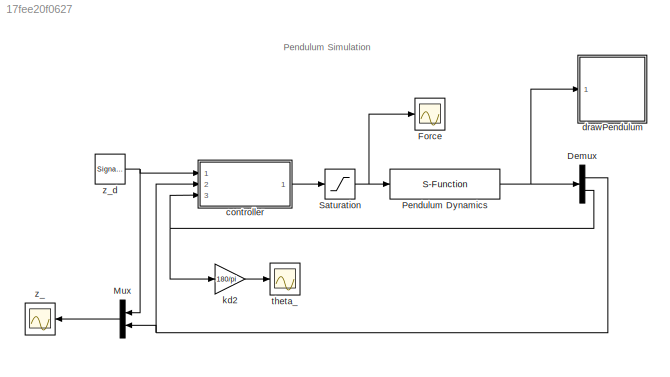
MODEL slx_17fee20f0627
KIND model
CONFIG AbsTol = auto
CONFIG FixedStep = auto
CONFIG InitFcn = param
CONFIG MaxStep = auto
CONFIG MinStep = auto
CONFIG RelTol = 1e-3
CONFIG SampleTimeConstraint = Unconstrained
CONFIG Solver = ode45
CONFIG SolverMode = Auto
CONFIG SolverName = ode45
CONFIG StartTime = 0.0
CONFIG StopTime = 300
BLOCK [Demux] Demux
  DisplayOption = bar
  Outputs = 2
  Ports = [1, 2]
BLOCK [Scope] Force
  DataFormat = StructureWithTime
  Floating = off
  NumInputPorts = 1
  Ports = [1]
  SampleTime = 0
  SaveName = ScopeData2
  TimeRange = 49.99
BLOCK [Mux] Mux
  DisplayOption = bar
  Inputs = 2
  Ports = [2, 1]
BLOCK [S-Function] Pendulum Dynamics
  FunctionName = pendulum_dynamics
  Parameters = AP
  Ports = [1, 1]
BLOCK [Saturate] Saturation
  InputPortMap = u0
  LowerLimit = -P.F_max
  Ports = [1, 1]
  UpperLimit = P.F_max
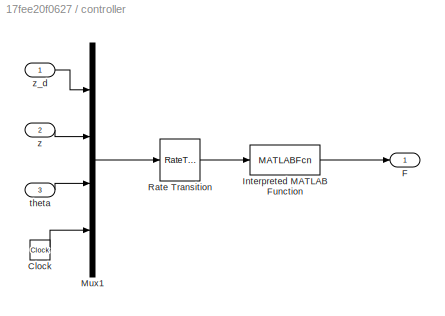
BLOCK [SubSystem] controller
  Ports = [3, 1]
  RequestExecContextInheritance = off
BLOCK [Clock] controller/Clock
BLOCK [Outport] controller/F
  IconDisplay = Port number
BLOCK [MATLABFcn] controller/Interpreted MATLAB Function
  MATLABFcn = pendulum_ctrl(u,P)
  OutputDimensions = 1
  Ports = [1, 1]
BLOCK [Mux] controller/Mux1
  DisplayOption = bar
  Ports = [4, 1]
BLOCK [RateTransition] controller/Rate Transition
  OutPortSampleTime = P.Ts
BLOCK [Inport] controller/theta
  IconDisplay = Port number
  Port = 3
BLOCK [Inport] controller/z
  IconDisplay = Port number
  Port = 2
BLOCK [Inport] controller/z_d
  IconDisplay = Port number
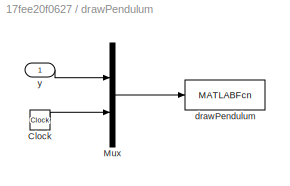
BLOCK [SubSystem] drawPendulum
  Ports = [1]
  RequestExecContextInheritance = off
BLOCK [Clock] drawPendulum/Clock
BLOCK [Mux] drawPendulum/Mux
  DisplayOption = bar
  Inputs = 2
  Ports = [2, 1]
BLOCK [MATLABFcn] drawPendulum/drawPendulum
  MATLABFcn = drawPendulum(u)
  OutputDimensions = 0
  Ports = [1]
  SampleTime = 0.1
BLOCK [Inport] drawPendulum/y
  IconDisplay = Port number
BLOCK [Gain] kd2
  Gain = 180/pi
  OutDataTypeStr = Inherit: Inherit via internal rule
  ParamDataTypeStr = Inherit: Inherit via internal rule
  SaturateOnIntegerOverflow = off
BLOCK [Scope] theta_
  DataFormat = StructureWithTime
  Floating = off
  NumInputPorts = 1
  Ports = [1]
  SampleTime = 0
  TimeRange = 49.99
  YMax = 4
  YMin = -4
BLOCK [Scope] z_
  DataFormat = StructureWithTime
  Floating = off
  NumInputPorts = 1
  Ports = [1]
  SampleTime = 0
  SaveName = ScopeData1
  TimeRange = 49.99
  YMax = 0.6000000000000001
  YMin = -0.6000000000000001
BLOCK [SignalGenerator] z_d
  Amplitude = 0.5
  Frequency = .02
  Ports = [0, 1]
  WaveForm = square
ANNOTATION (root): Pendulum Simulation
NET Demux:1 -> Mux:2, controller:2
NET Demux:2 -> controller:3, kd2:1
LINE Mux:1 -> z_:1
NET Pendulum Dynamics:1 -> Demux:1, drawPendulum:1
NET Saturation:1 -> Force:1, Pendulum Dynamics:1
LINE controller/Clock:1 -> controller/Mux1:4
LINE controller/Interpreted MATLAB Function:1 -> controller/F:1
LINE controller/Mux1:1 -> controller/Rate Transition:1
LINE controller/Rate Transition:1 -> controller/Interpreted MATLAB Function:1
LINE controller/theta:1 -> controller/Mux1:3
LINE controller/z:1 -> controller/Mux1:2
LINE controller/z_d:1 -> controller/Mux1:1
LINE controller:1 -> Saturation:1
LINE drawPendulum/Clock:1 -> drawPendulum/Mux:2
LINE drawPendulum/Mux:1 -> drawPendulum/drawPendulum:1
LINE drawPendulum/y:1 -> drawPendulum/Mux:1
LINE kd2:1 -> theta_:1
NET z_d:1 -> Mux:1, controller:1
note: NET lines group one-source signal fan-out (src -> all destinations, sorted); 1:1 wires keep LINE
